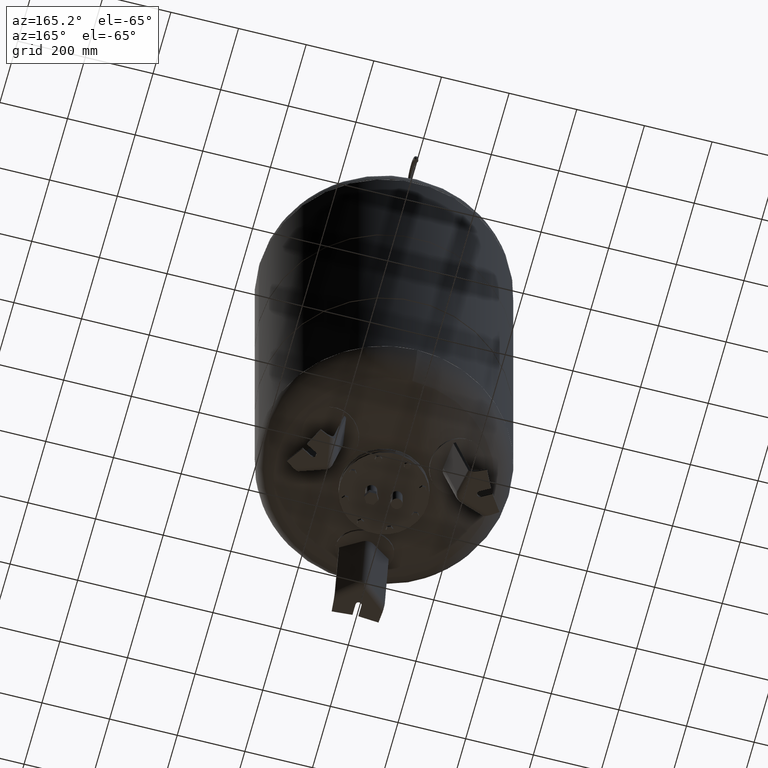
[diagram: clean part render]
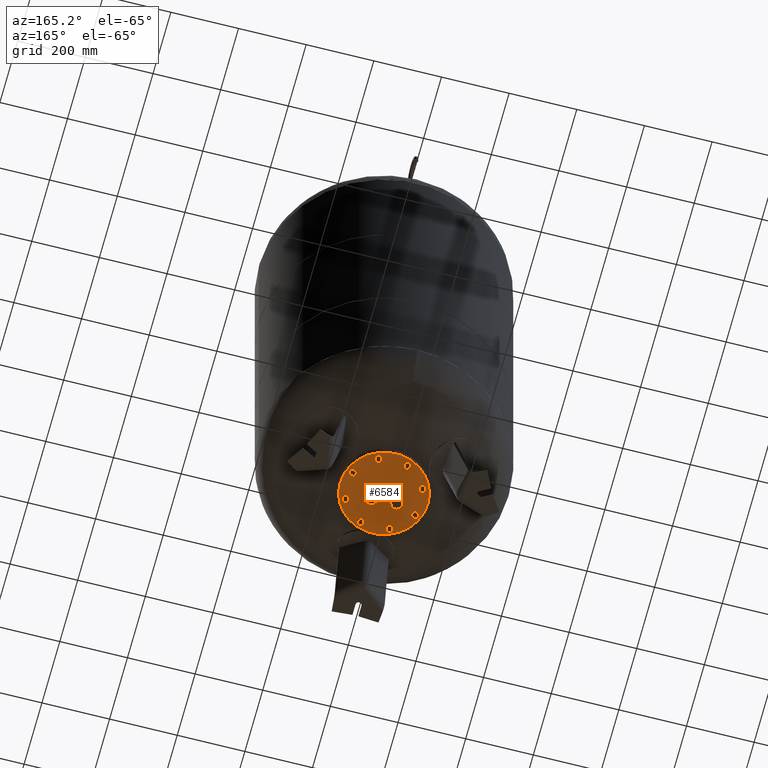
[diagram: same view with one face highlighted and labeled with its STEP entity id]
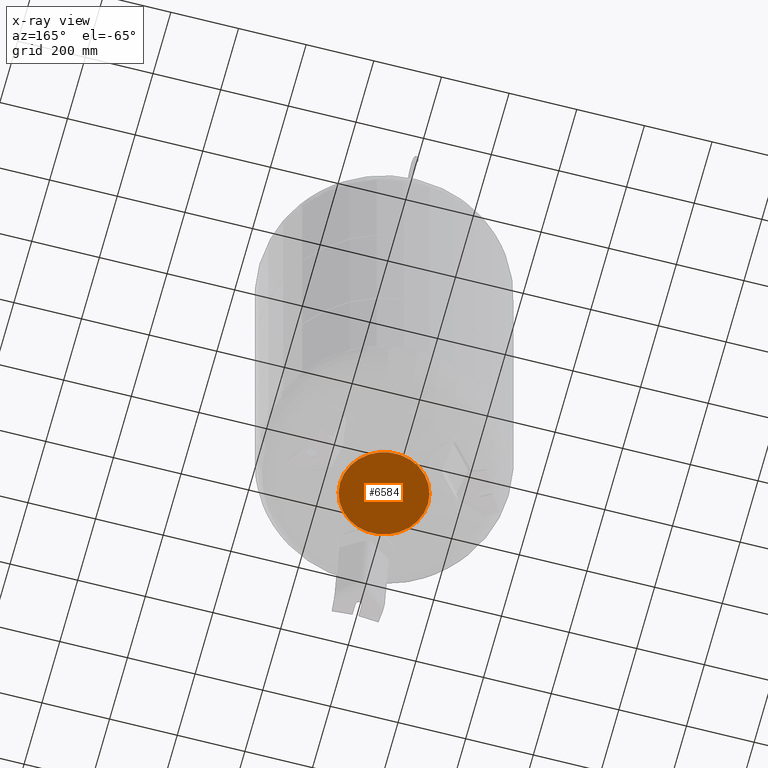
[diagram: x-ray of the same camera — body ghosted, the highlighted face saturated]
A machine part, auxiliary view. The second image highlights one B-rep face of the part: STEP entity #6584.
The next image is the same camera in x-ray: the body ghosted, the highlighted face saturated — about 0% of this face is hidden behind the body in this view.
In plain terms, the highlighted planar face has unit normal (0, 0, -1).
Its self-contained STEP definition (entity closure, byte-faithful):
#5874=CARTESIAN_POINT('',(54.350000000000009,-2.063530E-015,165.0));
#5875=VERTEX_POINT('',#5874);
#5891=CARTESIAN_POINT('',(20.649999999999999,1.438341E-014,165.0));
#5892=VERTEX_POINT('',#5891);
#5899=CARTESIAN_POINT('',(37.500000000000000,0.0,165.0));
#5900=DIRECTION('',(0.0,0.0,1.0));
#5901=DIRECTION('',(-1.0,0.0,0.0));
#5902=AXIS2_PLACEMENT_3D('',#5899,#5900,#5901);
#5903=CIRCLE('',#5902,16.850000000000001);
#5904=EDGE_CURVE('',#5875,#5892,#5903,.T.);
#5914=CARTESIAN_POINT('',(130.0,0.0,165.0));
#5915=VERTEX_POINT('',#5914);
#5924=CARTESIAN_POINT('',(-130.0,1.591988E-014,165.0));
#5925=VERTEX_POINT('',#5924);
#5926=CARTESIAN_POINT('',(4.874219E-031,1.462266E-030,165.0));
#5927=DIRECTION('',(0.0,0.0,-1.0));
#5928=DIRECTION('',(1.0,0.0,0.0));
#5929=AXIS2_PLACEMENT_3D('',#5926,#5927,#5928);
#5930=CIRCLE('',#5929,130.0);
#5931=EDGE_CURVE('',#5925,#5915,#5930,.T.);
#6245=CARTESIAN_POINT('',(-54.350000000000001,1.702775E-030,165.0));
#6246=VERTEX_POINT('',#6245);
#6262=CARTESIAN_POINT('',(-20.649999999999995,-2.063530E-015,165.0));
#6263=VERTEX_POINT('',#6262);
#6270=CARTESIAN_POINT('',(-37.500000000000000,1.672346E-030,165.0));
#6271=DIRECTION('',(0.0,0.0,1.0));
#6272=DIRECTION('',(-1.0,0.0,0.0));
#6273=AXIS2_PLACEMENT_3D('',#6270,#6271,#6272);
#6274=CIRCLE('',#6273,16.850000000000001);
#6275=EDGE_CURVE('',#6246,#6263,#6274,.T.);
#6302=CARTESIAN_POINT('',(-37.500000000000000,1.672346E-030,165.0));
#6303=DIRECTION('',(0.0,0.0,1.0));
#6304=DIRECTION('',(-1.0,0.0,0.0));
#6305=AXIS2_PLACEMENT_3D('',#6302,#6303,#6304);
#6306=CIRCLE('',#6305,16.850000000000001);
#6307=EDGE_CURVE('',#6263,#6246,#6306,.T.);
#6551=CARTESIAN_POINT('',(4.874219E-031,1.462266E-030,165.0));
#6552=DIRECTION('',(0.0,0.0,-1.0));
#6553=DIRECTION('',(1.0,0.0,0.0));
#6554=AXIS2_PLACEMENT_3D('',#6551,#6552,#6553);
#6555=CIRCLE('',#6554,130.0);
#6556=EDGE_CURVE('',#5915,#5925,#6555,.T.);
#6561=CARTESIAN_POINT('',(65.0,0.0,165.0));
#6562=DIRECTION('',(0.0,0.0,-1.0));
#6563=DIRECTION('',(0.0,1.0,0.0));
#6564=AXIS2_PLACEMENT_3D('',#6561,#6562,#6563);
#6565=PLANE('',#6564);
#6566=ORIENTED_EDGE('',*,*,#6556,.T.);
#6567=ORIENTED_EDGE('',*,*,#5931,.T.);
#6568=EDGE_LOOP('',(#6566,#6567));
#6569=FACE_OUTER_BOUND('',#6568,.T.);
#6570=ORIENTED_EDGE('',*,*,#6307,.T.);
#6571=ORIENTED_EDGE('',*,*,#6275,.T.);
#6572=EDGE_LOOP('',(#6570,#6571));
#6573=FACE_BOUND('',#6572,.T.);
#6574=ORIENTED_EDGE('',*,*,#5904,.T.);
#6575=CARTESIAN_POINT('',(37.500000000000000,0.0,165.0));
#6576=DIRECTION('',(0.0,0.0,1.0));
#6577=DIRECTION('',(-1.0,0.0,0.0));
#6578=AXIS2_PLACEMENT_3D('',#6575,#6576,#6577);
#6579=CIRCLE('',#6578,16.850000000000001);
#6580=EDGE_CURVE('',#5892,#5875,#6579,.T.);
#6581=ORIENTED_EDGE('',*,*,#6580,.T.);
#6582=EDGE_LOOP('',(#6574,#6581));
#6583=FACE_BOUND('',#6582,.T.);
#6584=ADVANCED_FACE('',(#6569,#6573,#6583),#6565,.T.);